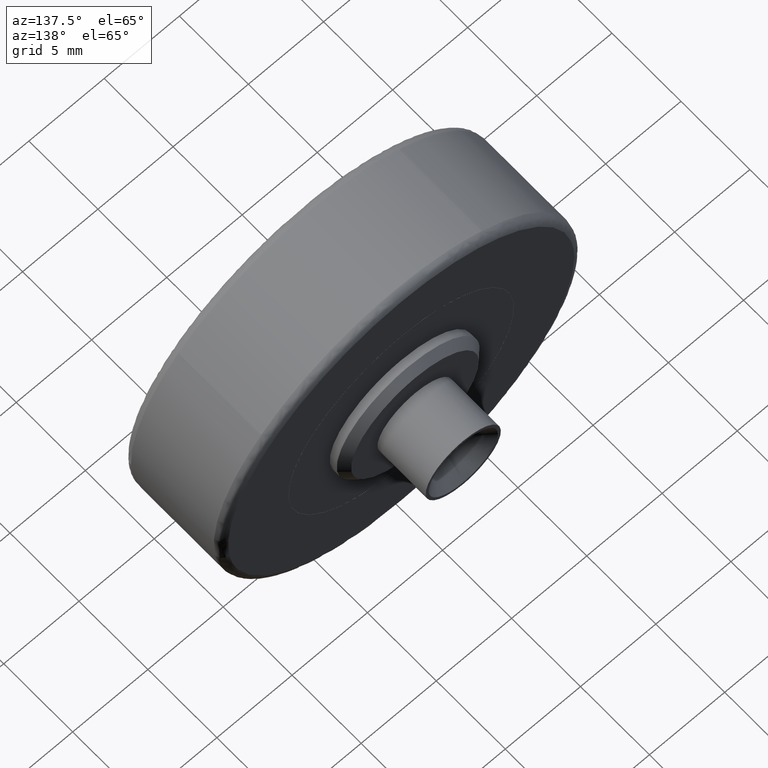
[diagram: clean part render]
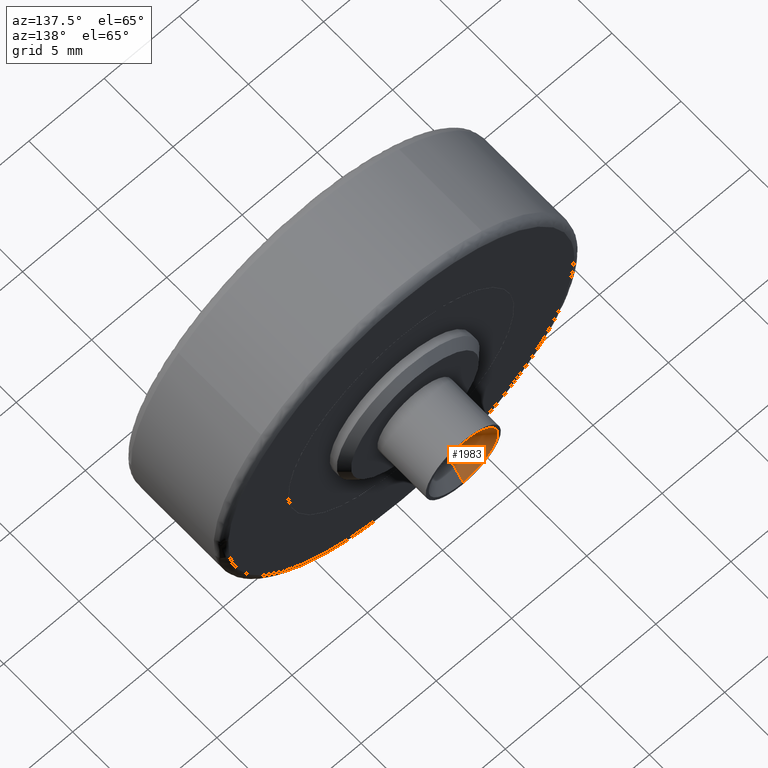
[diagram: same view with one face highlighted and labeled with its STEP entity id]
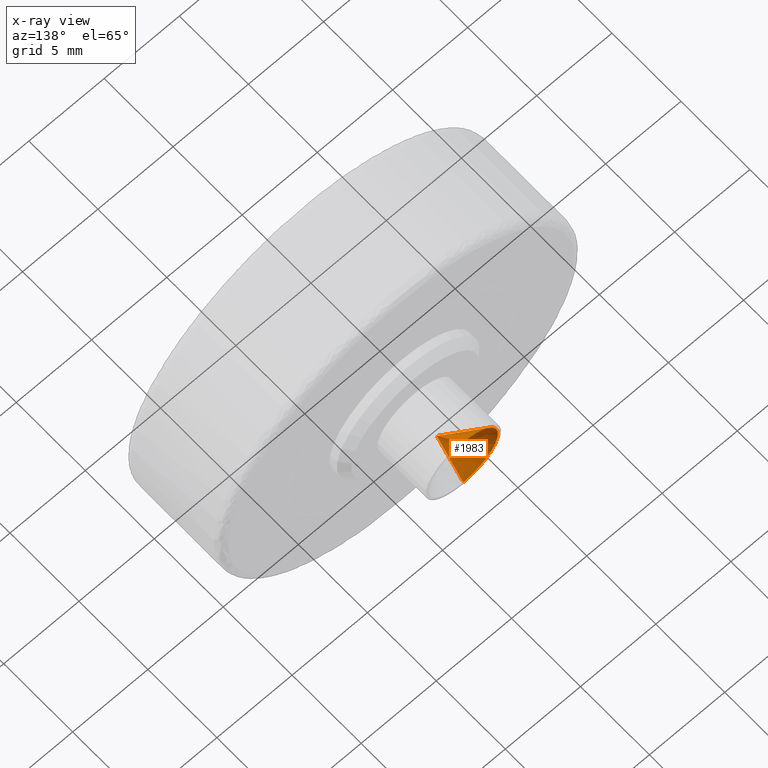
[diagram: x-ray of the same camera — body ghosted, the highlighted face saturated]
A machine part, auxiliary view. The second image highlights one B-rep face of the part: STEP entity #1983.
The next image is the same camera in x-ray: the body ghosted, the highlighted face saturated — about 0% of this face is hidden behind the body in this view.
In plain terms, the highlighted face is a freeform B-spline surface patch.
Its self-contained STEP definition (entity closure, byte-faithful):
#1860=CARTESIAN_POINT('',(9.388649E-017,11.500000000000000,-2.299999999999999));
#1861=VERTEX_POINT('',#1860);
#1862=CARTESIAN_POINT('',(-9.388649E-017,11.500000000000000,2.299999999999999));
#1863=VERTEX_POINT('',#1862);
#1879=CARTESIAN_POINT('',(0.0,9.570070848292259,-1.535880E-016));
#1880=VERTEX_POINT('',#1879);
#1881=CARTESIAN_POINT('',(0.0,9.570070848292259,-1.535880E-016));
#1882=CARTESIAN_POINT('',(9.388649E-017,11.500000000000000,-2.299999999999999));
#1883=QUASI_UNIFORM_CURVE('',1,(#1881,#1882),.UNSPECIFIED.,.F.,.U.);
#1884=EDGE_CURVE('',#1880,#1861,#1883,.T.);
#1886=CARTESIAN_POINT('',(0.0,9.570070848292259,-1.535880E-016));
#1887=CARTESIAN_POINT('',(-9.388649E-017,11.500000000000000,2.299999999999999));
#1888=QUASI_UNIFORM_CURVE('',1,(#1886,#1887),.UNSPECIFIED.,.F.,.U.);
#1889=EDGE_CURVE('',#1880,#1863,#1888,.T.);
#1941=CARTESIAN_POINT('',(0.0,11.500000000000000,2.300000000000000));
#1942=CARTESIAN_POINT('',(-2.300000000000000,11.500000000000002,2.300000000000000));
#1943=CARTESIAN_POINT('',(-2.300000000000000,11.500000000000000,-1.535880E-016));
#1944=CARTESIAN_POINT('',(-2.300000000000000,11.500000000000002,-2.300000000000000));
#1945=CARTESIAN_POINT('',(0.0,11.500000000000000,-2.300000000000000));
#1953=(BOUNDED_CURVE()B_SPLINE_CURVE(2,(#1941,#1942,#1943,#1944,#1945),.UNSPECIFIED.,.F.,.U.)B_SPLINE_CURVE_WITH_KNOTS((3,2,3),(0.0,0.500000000000000,1.0),.UNSPECIFIED.)CURVE()GEOMETRIC_REPRESENTATION_ITEM()RATIONAL_B_SPLINE_CURVE((1.0,0.707106781186547,1.0,0.707106781186547,1.0))REPRESENTATION_ITEM(''));
#1954=EDGE_CURVE('',#1863,#1861,#1953,.T.);
#1960=CARTESIAN_POINT('',(0.0,9.570070848292257,-1.535880E-016));
#1961=CARTESIAN_POINT('',(0.061749784999007,11.549454434512510,2.358129151034528));
#1962=CARTESIAN_POINT('',(0.0,9.570070848292257,-1.535880E-016));
#1963=CARTESIAN_POINT('',(-2.423199847206847,11.549454434512512,2.423199847206855));
#1964=CARTESIAN_POINT('',(0.0,9.570070848292257,-1.535880E-016));
#1965=CARTESIAN_POINT('',(-2.358129151034529,11.549454434512510,-0.061749784999000));
#1966=CARTESIAN_POINT('',(0.0,9.570070848292257,-1.535880E-016));
#1967=CARTESIAN_POINT('',(-2.293058454862210,11.549454434512512,-2.546699417204854));
#1968=CARTESIAN_POINT('',(0.0,9.570070848292257,-1.535880E-016));
#1969=CARTESIAN_POINT('',(0.185080103128499,11.549454434512510,-2.351665682943091));
#1977=(BOUNDED_SURFACE()B_SPLINE_SURFACE(1,2,((#1960,#1962,#1964,#1966,#1968),(#1961,#1963,#1965,#1967,#1969)),.UNSPECIFIED.,.F.,.F.,.U.)B_SPLINE_SURFACE_WITH_KNOTS((2,2),(3,2,3),(0.0,1.0),(0.0,1.0,2.0),.UNSPECIFIED.)GEOMETRIC_REPRESENTATION_ITEM()RATIONAL_B_SPLINE_SURFACE(((1.0,0.688354575693754,1.0,0.688354575693754,1.0),(1.0,0.688354575693754,1.0,0.688354575693754,1.0)))REPRESENTATION_ITEM('')SURFACE());
#1978=ORIENTED_EDGE('',*,*,#1884,.T.);
#1979=ORIENTED_EDGE('',*,*,#1954,.F.);
#1980=ORIENTED_EDGE('',*,*,#1889,.F.);
#1981=EDGE_LOOP('',(#1978,#1979,#1980));
#1982=FACE_OUTER_BOUND('',#1981,.T.);
#1983=ADVANCED_FACE('',(#1982),#1977,.F.);